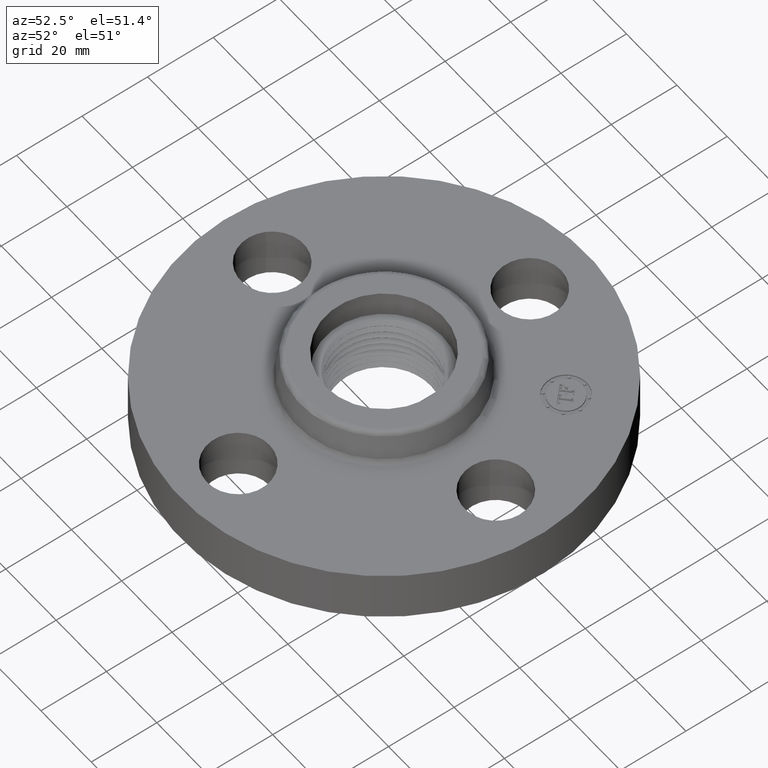
[diagram: clean part render]
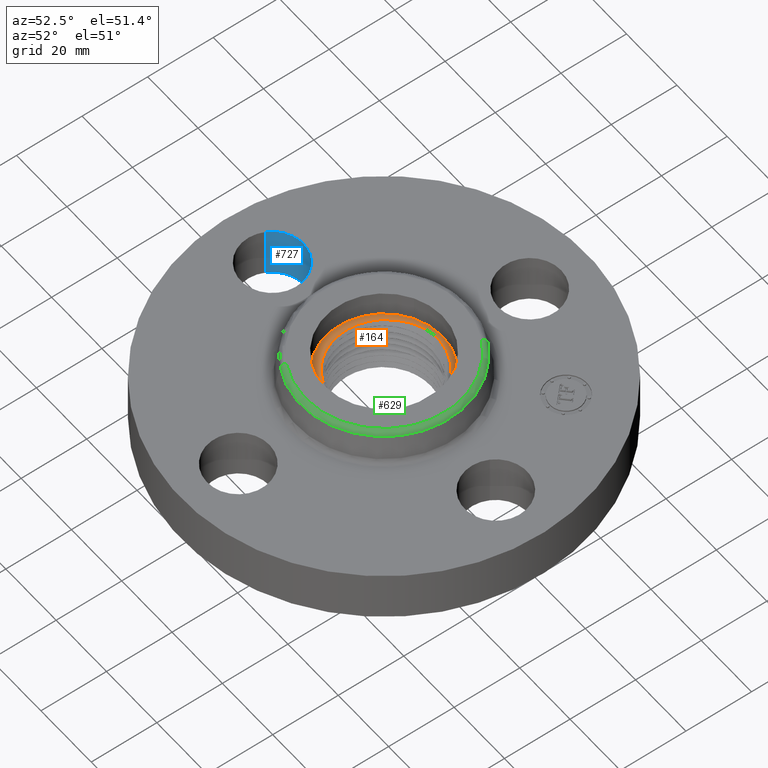
[diagram: same view with three faces highlighted in distinct colors, each labeled with its STEP entity id]
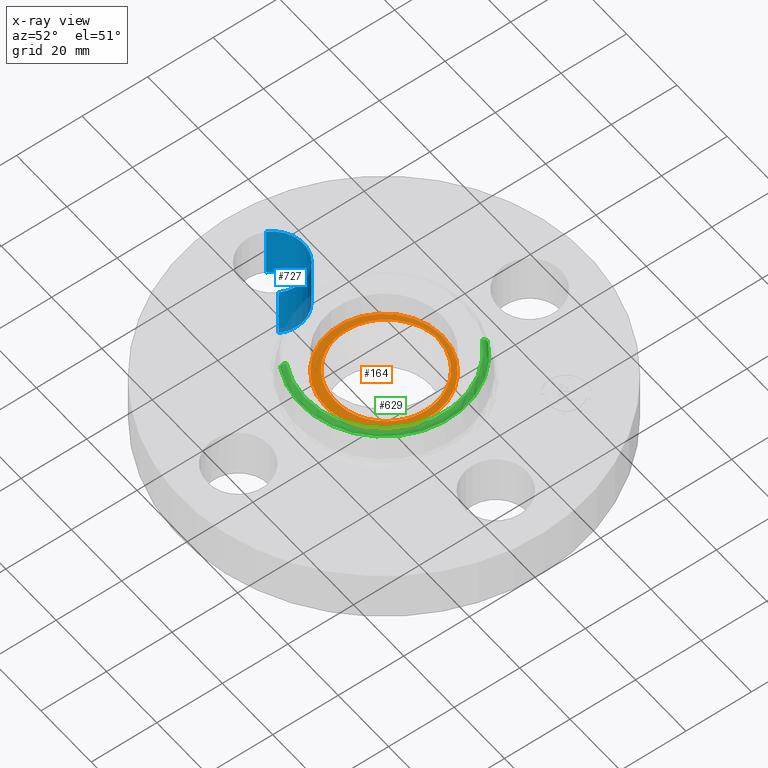
[diagram: x-ray of the same camera — body ghosted, the three highlighted faces saturated]
A machine part, auxiliary view with three faces highlighted in distinct colors.
The next image is the same camera in x-ray (body ghosted, the three faces saturated) — at least one of them is partly hidden behind the body in this view.
Their STEP definitions:

[orange] entity #164 — the highlighted planar face has unit normal (0, 0, -1).
#38=AXIS2_PLACEMENT_3D('Plane Axis2P3D',#35,#36,#37) ;
#42=AXIS2_PLACEMENT_3D('Circle Axis2P3D',#40,#41,$) ;
#51=AXIS2_PLACEMENT_3D('Circle Axis2P3D',#49,#50,$) ;
#60=AXIS2_PLACEMENT_3D('Circle Axis2P3D',#58,#59,$) ;
#35=CARTESIAN_POINT('Axis2P3D Location',(-9.35384753031E-017,1.08399728389E-016,0.690000000003)) ;
#40=CARTESIAN_POINT('Axis2P3D Location',(0.,0.,0.690000000003)) ;
#44=CARTESIAN_POINT('Vertex',(-0.337995004717,0.618695706135,0.690000000003)) ;
#46=CARTESIAN_POINT('Vertex',(0.337995004717,-0.618695706135,0.690000000003)) ;
#49=CARTESIAN_POINT('Axis2P3D Location',(0.,0.,0.690000000003)) ;
#58=CARTESIAN_POINT('Axis2P3D Location',(4.63321419725E-017,-3.1470888887E-017,0.690000000003)) ;
#62=CARTESIAN_POINT('Vertex',(-0.00903886736294,-0.58571388773,0.689999415054)) ;
#64=CARTESIAN_POINT('Vertex',(-0.0792565120745,-0.580397194579,0.690000474261)) ;
#68=CARTESIAN_POINT('Control Point',(-0.308881525613,0.565408058352,0.690000000003)) ;
#69=CARTESIAN_POINT('Control Point',(-0.36260165941,0.533482564903,0.690000000003)) ;
#70=CARTESIAN_POINT('Control Point',(-0.412332958948,0.495108381683,0.690000000003)) ;
#71=CARTESIAN_POINT('Control Point',(-0.457019811052,0.450936560626,0.690000000003)) ;
#72=CARTESIAN_POINT('Control Point',(-0.534552434616,0.35280799525,0.690000000003)) ;
#73=CARTESIAN_POINT('Control Point',(-0.585894394109,0.239404109574,0.690000000003)) ;
#74=CARTESIAN_POINT('Control Point',(-0.604402019441,0.17992987566,0.690000000003)) ;
#75=CARTESIAN_POINT('Control Point',(-0.622692133586,0.0782687596095,0.690000000003)) ;
#76=CARTESIAN_POINT('Control Point',(-0.619930746998,-0.0241839613735,0.690000000003)) ;
#77=CARTESIAN_POINT('Control Point',(-0.615444030327,-0.0649180073851,0.690000000003)) ;
#78=CARTESIAN_POINT('Control Point',(-0.595887485658,-0.165213099952,0.690000000003)) ;
#79=CARTESIAN_POINT('Control Point',(-0.556165807498,-0.259391497895,0.690000000003)) ;
#80=CARTESIAN_POINT('Control Point',(-0.525441180764,-0.312479621596,0.690000000003)) ;
#81=CARTESIAN_POINT('Control Point',(-0.451554926348,-0.409625451674,0.690000000003)) ;
#82=CARTESIAN_POINT('Control Point',(-0.356455933374,-0.485110488711,0.690000000003)) ;
#83=CARTESIAN_POINT('Control Point',(-0.304481331959,-0.516569408435,0.690000000003)) ;
#84=CARTESIAN_POINT('Control Point',(-0.227946826061,-0.550511204763,0.690000000003)) ;
#85=CARTESIAN_POINT('Control Point',(-0.147503304085,-0.570436977092,0.690000000003)) ;
#86=CARTESIAN_POINT('Control Point',(-0.124888813547,-0.574876309664,0.690000000003)) ;
#87=CARTESIAN_POINT('Control Point',(-0.102115212315,-0.578197986844,0.690000000003)) ;
#88=CARTESIAN_POINT('Control Point',(-0.0792563972517,-0.580396478467,0.690000000003)) ;
#89=CARTESIAN_POINT('Vertex',(-0.308881525613,0.565408058352,0.690000000003)) ;
#93=CARTESIAN_POINT('Control Point',(-0.0512963117231,0.652102374628,0.690000000003)) ;
#94=CARTESIAN_POINT('Control Point',(-0.105898693027,0.645840623352,0.690000000003)) ;
#95=CARTESIAN_POINT('Control Point',(-0.159745911619,0.633850937429,0.690000000003)) ;
#96=CARTESIAN_POINT('Control Point',(-0.212043237634,0.616236572252,0.690000000003)) ;
#97=CARTESIAN_POINT('Control Point',(-0.261982505528,0.593279812467,0.690000000003)) ;
#98=CARTESIAN_POINT('Control Point',(-0.308881525613,0.565408058352,0.690000000003)) ;
#99=CARTESIAN_POINT('Vertex',(-0.0512963117231,0.652102374628,0.690000000003)) ;
#103=CARTESIAN_POINT('Control Point',(-0.0512963117231,0.652102374628,0.690000000003)) ;
#104=CARTESIAN_POINT('Control Point',(-0.04103999974,0.652576889246,0.690000000003)) ;
#105=CARTESIAN_POINT('Control Point',(-0.0307774366827,0.652849900233,0.690000000003)) ;
#106=CARTESIAN_POINT('Control Point',(-0.0205069475264,0.652921221878,0.690000000003)) ;
#107=CARTESIAN_POINT('Control Point',(-0.010247700563,0.652790793562,0.690000000003)) ;
#108=CARTESIAN_POINT('Control Point',(2.00076074408E-006,0.652458980637,0.690000000003)) ;
#109=CARTESIAN_POINT('Vertex',(2.00076074406E-006,0.652458980637,0.690000000003)) ;
#113=CARTESIAN_POINT('Control Point',(2.00076074439E-006,0.652458980637,0.690000000003)) ;
#114=CARTESIAN_POINT('Control Point',(0.0628534957867,0.650424293413,0.690000000003)) ;
#115=CARTESIAN_POINT('Control Point',(0.12534597527,0.640817246794,0.690000000003)) ;
#116=CARTESIAN_POINT('Control Point',(0.1862495667,0.623692524385,0.690000000003)) ;
#117=CARTESIAN_POINT('Control Point',(0.302458576766,0.575137338508,0.690000000003)) ;
#118=CARTESIAN_POINT('Control Point',(0.403264737149,0.500460306595,0.690000000003)) ;
#119=CARTESIAN_POINT('Control Point',(0.448767335018,0.457207658357,0.690000000003)) ;
#120=CARTESIAN_POINT('Control Point',(0.514896517596,0.376761462889,0.690000000003)) ;
#121=CARTESIAN_POINT('Control Point',(0.563077131793,0.285272506543,0.690000000003)) ;
#122=CARTESIAN_POINT('Control Point',(0.579279875738,0.247234521516,0.690000000003)) ;
#123=CARTESIAN_POINT('Control Point',(0.611763000535,0.149389253071,0.690000000003)) ;
#124=CARTESIAN_POINT('Control Point',(0.623693371656,0.046892346309,0.690000000003)) ;
#125=CARTESIAN_POINT('Control Point',(0.623171774001,-0.0150432937449,0.690000000003)) ;
#126=CARTESIAN_POINT('Control Point',(0.606849843967,-0.137226605623,0.690000000003)) ;
#127=CARTESIAN_POINT('Control Point',(0.561333288152,-0.25120629392,0.690000000003)) ;
#128=CARTESIAN_POINT('Control Point',(0.531608473177,-0.304952551893,0.690000000003)) ;
#129=CARTESIAN_POINT('Control Point',(0.470406462441,-0.388773025125,0.690000000003)) ;
#130=CARTESIAN_POINT('Control Point',(0.393520154161,-0.457345345819,0.690000000003)) ;
#131=CARTESIAN_POINT('Control Point',(0.35956108307,-0.482648627701,0.690000000003)) ;
#132=CARTESIAN_POINT('Control Point',(0.323607107796,-0.504806208952,0.690000000003)) ;
#133=CARTESIAN_POINT('Control Point',(0.286055212897,-0.523627480654,0.690000000003)) ;
#134=CARTESIAN_POINT('Vertex',(0.286055212897,-0.523627480654,0.690000000003)) ;
#138=CARTESIAN_POINT('Control Point',(0.286055212897,-0.523627480654,0.690000000003)) ;
#139=CARTESIAN_POINT('Control Point',(0.232915310208,-0.550261570459,0.690000000003)) ;
#140=CARTESIAN_POINT('Control Point',(0.176575532646,-0.570214566329,0.690000000003)) ;
#141=CARTESIAN_POINT('Control Point',(0.118123330753,-0.582957699229,0.690000000003)) ;
#142=CARTESIAN_POINT('Control Point',(0.0588576643434,-0.588229937475,0.690000000003)) ;
#143=CARTESIAN_POINT('Control Point',(-3.89521526705E-006,-0.586108516025,0.690000000003)) ;
#144=CARTESIAN_POINT('Vertex',(-3.89521526703E-006,-0.586108516025,0.690000000003)) ;
#148=CARTESIAN_POINT('Control Point',(-3.89521526674E-006,-0.586108516025,0.690000000003)) ;
#149=CARTESIAN_POINT('Control Point',(-0.00181171646608,-0.586043360581,0.690000000003)) ;
#150=CARTESIAN_POINT('Control Point',(-0.00361915644433,-0.58597123061,0.690000000003)) ;
#151=CARTESIAN_POINT('Control Point',(-0.00542622120846,-0.585892126258,0.690000000003)) ;
#152=CARTESIAN_POINT('Control Point',(-0.00723278933688,-0.585806053612,0.690000000003)) ;
#153=CARTESIAN_POINT('Control Point',(-0.00903886697114,-0.585713013517,0.690000000003)) ;
#36=DIRECTION('Axis2P3D Direction',(0.,0.,-0.0393700787402)) ;
#37=DIRECTION('Axis2P3D XDirection',(0.,0.0393700787402,0.)) ;
#41=DIRECTION('Axis2P3D Direction',(0.,0.,-0.0393700787402)) ;
#50=DIRECTION('Axis2P3D Direction',(0.,0.,-0.0393700787402)) ;
#59=DIRECTION('Axis2P3D Direction',(0.,0.,-0.0393700787402)) ;
#55=ORIENTED_EDGE('',*,*,#48,.T.) ;
#56=ORIENTED_EDGE('',*,*,#53,.T.) ;
#156=ORIENTED_EDGE('',*,*,#66,.T.) ;
#157=ORIENTED_EDGE('',*,*,#91,.F.) ;
#158=ORIENTED_EDGE('',*,*,#101,.F.) ;
#159=ORIENTED_EDGE('',*,*,#111,.T.) ;
#160=ORIENTED_EDGE('',*,*,#136,.T.) ;
#161=ORIENTED_EDGE('',*,*,#146,.T.) ;
#162=ORIENTED_EDGE('',*,*,#154,.T.) ;
#163=FACE_BOUND('',#155,.T.) ;
#164=ADVANCED_FACE('PartBody',(#57,#163),#39,.F.) ;
#67=B_SPLINE_CURVE_WITH_KNOTS('',5,(#68,#69,#70,#71,#72,#73,#74,#75,#76,#77,#78,#79,#80,#81,#82,#83,#84,#85,#86,#87,#88),.UNSPECIFIED.,.F.,.U.,(6,3,3,3,3,3,6),(0.,11.0214773293,22.0480471942,29.3976759317,40.4227909294,51.4572849866,55.7110696875),.UNSPECIFIED.) ;
#92=B_SPLINE_CURVE_WITH_KNOTS('',5,(#93,#94,#95,#96,#97,#98),.UNSPECIFIED.,.F.,.U.,(6,6),(0.,9.62202530608),.UNSPECIFIED.) ;
#102=B_SPLINE_CURVE_WITH_KNOTS('',5,(#103,#104,#105,#106,#107,#108),.UNSPECIFIED.,.F.,.U.,(6,6),(0.,1.7974652589),.UNSPECIFIED.) ;
#112=B_SPLINE_CURVE_WITH_KNOTS('',5,(#113,#114,#115,#116,#117,#118,#119,#120,#121,#122,#123,#124,#125,#126,#127,#128,#129,#130,#131,#132,#133),.UNSPECIFIED.,.F.,.U.,(6,3,3,3,3,3,6),(0.,11.0221142254,22.0446924347,29.388904347,40.4010983232,51.416392531,59.1056915321),.UNSPECIFIED.) ;
#137=B_SPLINE_CURVE_WITH_KNOTS('',5,(#138,#139,#140,#141,#142,#143),.UNSPECIFIED.,.F.,.U.,(6,6),(0.,10.8811712785),.UNSPECIFIED.) ;
#147=B_SPLINE_CURVE_WITH_KNOTS('',5,(#148,#149,#150,#151,#152,#153),.UNSPECIFIED.,.F.,.U.,(6,6),(0.,0.334194554492),.UNSPECIFIED.) ;
#43=CIRCLE('generated circle',#42,0.705000000003) ;
#52=CIRCLE('generated circle',#51,0.705000000003) ;
#61=CIRCLE('generated circle',#60,0.585783646766) ;
#48=EDGE_CURVE('',#45,#47,#43,.F.) ;
#53=EDGE_CURVE('',#47,#45,#52,.F.) ;
#66=EDGE_CURVE('',#63,#65,#61,.T.) ;
#91=EDGE_CURVE('',#90,#65,#67,.T.) ;
#101=EDGE_CURVE('',#100,#90,#92,.T.) ;
#111=EDGE_CURVE('',#100,#110,#102,.T.) ;
#136=EDGE_CURVE('',#110,#135,#112,.T.) ;
#146=EDGE_CURVE('',#135,#145,#137,.T.) ;
#154=EDGE_CURVE('',#145,#63,#147,.T.) ;
#54=EDGE_LOOP('',(#55,#56)) ;
#155=EDGE_LOOP('',(#156,#157,#158,#159,#160,#161,#162)) ;
#57=FACE_OUTER_BOUND('',#54,.T.) ;
#39=PLANE('',#38) ;
#45=VERTEX_POINT('',#44) ;
#47=VERTEX_POINT('',#46) ;
#63=VERTEX_POINT('',#62) ;
#65=VERTEX_POINT('',#64) ;
#90=VERTEX_POINT('',#89) ;
#100=VERTEX_POINT('',#99) ;
#110=VERTEX_POINT('',#109) ;
#135=VERTEX_POINT('',#134) ;
#145=VERTEX_POINT('',#144) ;

[blue] entity #727 — the highlighted cylindrical surface (partial cylindrical patch) has radius 9.525 mm, axis along (-0, 0, -1).
#344=AXIS2_PLACEMENT_3D('Circle Axis2P3D',#342,#343,$) ;
#688=AXIS2_PLACEMENT_3D('Cylinder Axis2P3D',#685,#686,#687) ;
#718=AXIS2_PLACEMENT_3D('Circle Axis2P3D',#716,#717,$) ;
#337=CARTESIAN_POINT('Vertex',(-1.4209065393,-0.179784576977,0.)) ;
#339=CARTESIAN_POINT('Vertex',(-2.07909346072,0.179784576977,0.)) ;
#342=CARTESIAN_POINT('Axis2P3D Location',(-1.75000000001,-2.09805925913E-016,0.)) ;
#685=CARTESIAN_POINT('Axis2P3D Location',(-1.75000000001,-2.14313189852E-016,0.616062992128)) ;
#690=CARTESIAN_POINT('Line Origine',(-1.4209065393,-0.179784576977,0.310000000001)) ;
#694=CARTESIAN_POINT('Vertex',(-1.4209065393,-0.179784576977,0.620000000002)) ;
#697=CARTESIAN_POINT('Line Origine',(-2.07909346072,0.179784576977,0.310000000001)) ;
#701=CARTESIAN_POINT('Vertex',(-2.07909346072,0.179784576977,0.620000000002)) ;
#716=CARTESIAN_POINT('Axis2P3D Location',(-1.75000000001,-2.14313189852E-016,0.620000000002)) ;
#343=DIRECTION('Axis2P3D Direction',(0.,0.,-0.0393700787402)) ;
#686=DIRECTION('Axis2P3D Direction',(-0.,0.,-0.0393700787402)) ;
#687=DIRECTION('Axis2P3D XDirection',(-0.0345504945626,0.0188750212049,0.)) ;
#691=DIRECTION('Vector Direction',(0.,0.,-0.0393700787402)) ;
#698=DIRECTION('Vector Direction',(0.,0.,-0.0393700787402)) ;
#717=DIRECTION('Axis2P3D Direction',(-0.,0.,-0.0393700787402)) ;
#692=VECTOR('Line Direction',#691,0.0393700787402) ;
#699=VECTOR('Line Direction',#698,0.0393700787402) ;
#722=ORIENTED_EDGE('',*,*,#703,.F.) ;
#723=ORIENTED_EDGE('',*,*,#346,.T.) ;
#724=ORIENTED_EDGE('',*,*,#696,.T.) ;
#725=ORIENTED_EDGE('',*,*,#720,.F.) ;
#727=ADVANCED_FACE('PartBody',(#726),#689,.F.) ;
#345=CIRCLE('generated circle',#344,0.375000000002) ;
#719=CIRCLE('generated circle',#718,0.375000000002) ;
#689=CYLINDRICAL_SURFACE('generated cylinder',#688,0.375000000002) ;
#346=EDGE_CURVE('',#340,#338,#345,.T.) ;
#696=EDGE_CURVE('',#338,#695,#693,.F.) ;
#703=EDGE_CURVE('',#340,#702,#700,.F.) ;
#720=EDGE_CURVE('',#702,#695,#719,.T.) ;
#721=EDGE_LOOP('',(#722,#723,#724,#725)) ;
#726=FACE_OUTER_BOUND('',#721,.T.) ;
#693=LINE('Line',#690,#692) ;
#700=LINE('Line',#697,#699) ;
#338=VERTEX_POINT('',#337) ;
#340=VERTEX_POINT('',#339) ;
#695=VERTEX_POINT('',#694) ;
#702=VERTEX_POINT('',#701) ;

[green] entity #629 — the highlighted toroidal blend (fillet) surface has major radius 23.9433 mm and minor (blend) radius 1.524 mm.
#570=AXIS2_PLACEMENT_3D('Circle Axis2P3D',#568,#569,$) ;
#602=AXIS2_PLACEMENT_3D('Torus Axis2P3D',#599,#600,#601) ;
#606=AXIS2_PLACEMENT_3D('Circle Axis2P3D',#604,#605,$) ;
#613=AXIS2_PLACEMENT_3D('Circle Axis2P3D',#611,#612,$) ;
#620=AXIS2_PLACEMENT_3D('Circle Axis2P3D',#618,#619,$) ;
#565=CARTESIAN_POINT('Vertex',(0.480258892685,0.879108006303,0.950418890664)) ;
#568=CARTESIAN_POINT('Axis2P3D Location',(0.,0.,0.950418890664)) ;
#572=CARTESIAN_POINT('Vertex',(-0.480258892685,-0.879108006303,0.950418890664)) ;
#599=CARTESIAN_POINT('Axis2P3D Location',(0.,0.,0.940000000004)) ;
#604=CARTESIAN_POINT('Axis2P3D Location',(0.45193037344,0.827252999652,0.940000000004)) ;
#608=CARTESIAN_POINT('Vertex',(0.45193037344,0.827252999652,1.)) ;
#611=CARTESIAN_POINT('Axis2P3D Location',(0.,0.,1.)) ;
#615=CARTESIAN_POINT('Vertex',(-0.45193037344,-0.827252999652,1.)) ;
#618=CARTESIAN_POINT('Axis2P3D Location',(-0.45193037344,-0.827252999652,0.940000000004)) ;
#569=DIRECTION('Axis2P3D Direction',(0.,0.,-0.0393700787402)) ;
#600=DIRECTION('Axis2P3D Direction',(0.,0.,-0.0393700787402)) ;
#601=DIRECTION('Axis2P3D XDirection',(-0.0188750212049,-0.0345504945626,0.)) ;
#605=DIRECTION('Axis2P3D Direction',(-0.0345504945626,0.0188750212049,0.)) ;
#612=DIRECTION('Axis2P3D Direction',(0.,0.,-0.0393700787402)) ;
#619=DIRECTION('Axis2P3D Direction',(0.0345504945626,-0.0188750212049,0.)) ;
#624=ORIENTED_EDGE('',*,*,#574,.F.) ;
#625=ORIENTED_EDGE('',*,*,#610,.T.) ;
#626=ORIENTED_EDGE('',*,*,#617,.T.) ;
#627=ORIENTED_EDGE('',*,*,#622,.F.) ;
#629=ADVANCED_FACE('PartBody',(#628),#603,.T.) ;
#571=CIRCLE('generated circle',#570,1.00173823464) ;
#607=CIRCLE('generated circle',#606,0.0600000000002) ;
#614=CIRCLE('generated circle',#613,0.942649769464) ;
#621=CIRCLE('generated circle',#620,0.0600000000002) ;
#603=TOROIDAL_SURFACE('homeo Torus',#602,0.942649769464,0.0600000000002) ;
#574=EDGE_CURVE('',#566,#573,#571,.T.) ;
#610=EDGE_CURVE('',#566,#609,#607,.F.) ;
#617=EDGE_CURVE('',#609,#616,#614,.T.) ;
#622=EDGE_CURVE('',#573,#616,#621,.F.) ;
#623=EDGE_LOOP('',(#624,#625,#626,#627)) ;
#628=FACE_OUTER_BOUND('',#623,.T.) ;
#566=VERTEX_POINT('',#565) ;
#573=VERTEX_POINT('',#572) ;
#609=VERTEX_POINT('',#608) ;
#616=VERTEX_POINT('',#615) ;